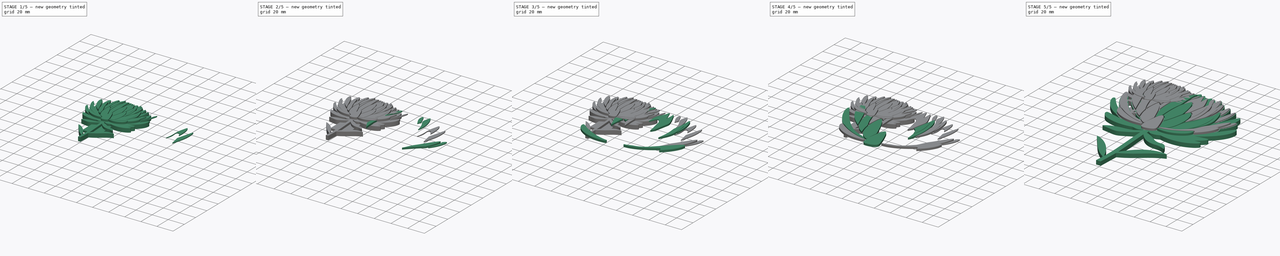
[diagram: build sequence overview — one tinted view per stage of 5, left to right]
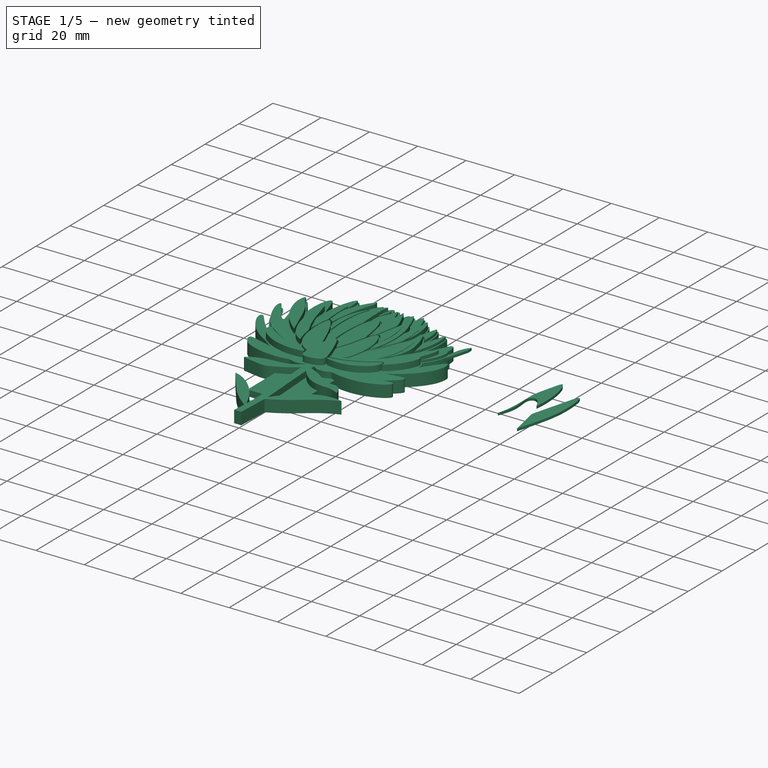
[diagram: stage 1 of 5 — iso view after this stage's code; geometry added in this stage tinted green]
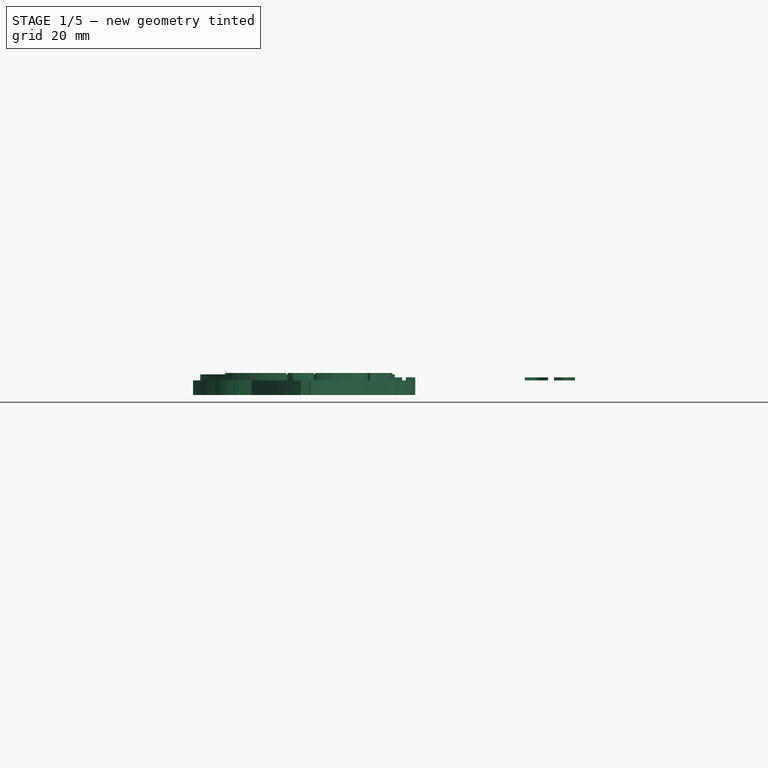
[diagram: stage 1 of 5 — front view after this stage's code; geometry added in this stage tinted green]
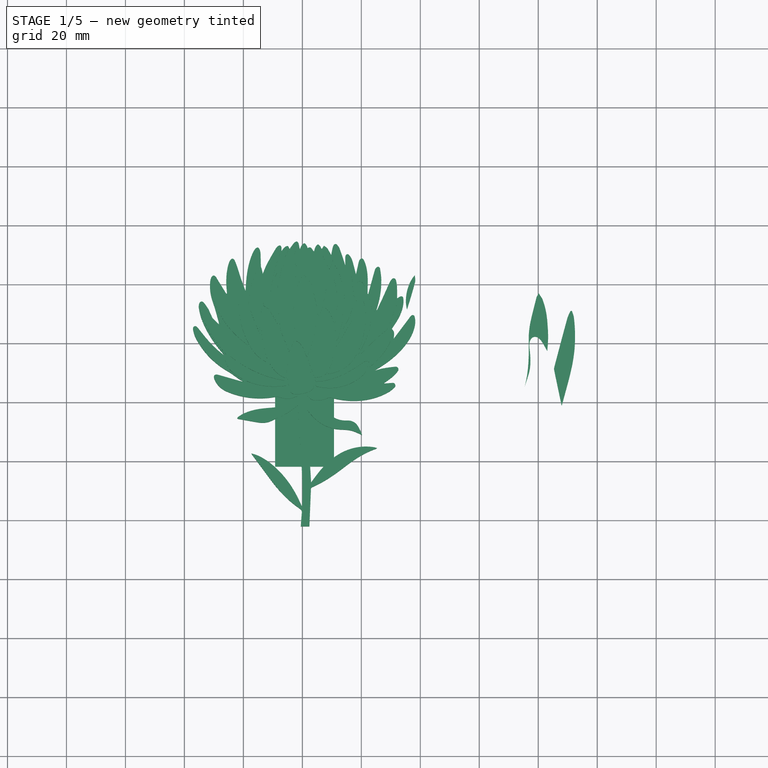
[diagram: stage 1 of 5 — top view after this stage's code; geometry added in this stage tinted green]
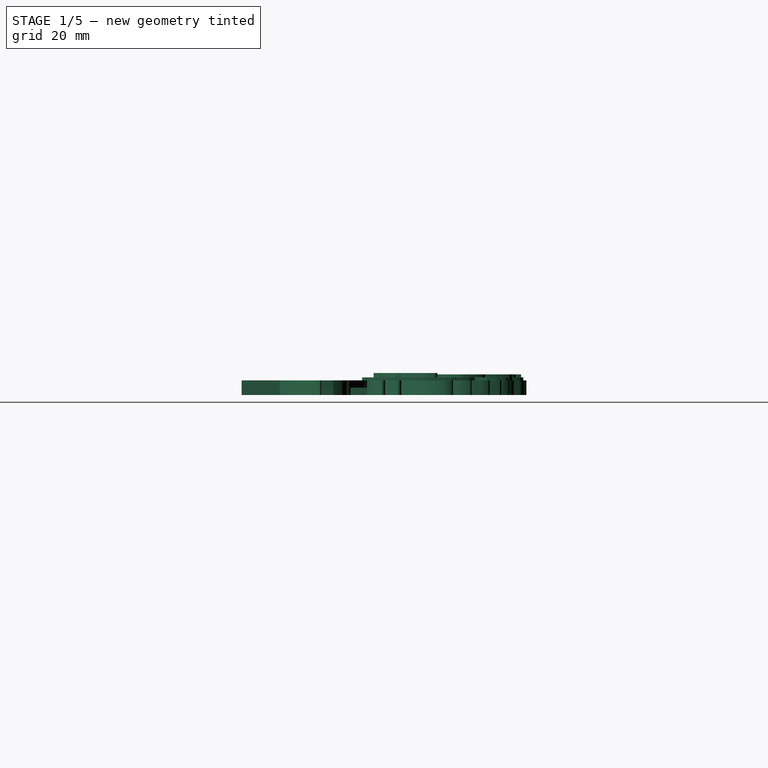
[diagram: stage 1 of 5 — right view after this stage's code; geometry added in this stage tinted green]
FCSTD DOCUMENT  (FreeCAD 1.0R39109 (Git))
Label: hook
License: All rights reserved
LicenseURL: https://en.wikipedia.org/wiki/All_rights_reserved
objects: Part::Extrusion×31, Part::Feature×29, Part::MultiFuse×2, Sketcher::SketchObject×2, Part::Scale×1
note: 67 computed .brp shape members not serialized (recipe doc carries the construction recipe); baked Part::Feature solids carry a one-line shape summary decoded from their .brp

FEATURE [Part::Extrusion] Extrude025
  Base = -> Path026
  Dir = (0,0,1)
  DirMode = 2
  FaceMakerClass = Part::FaceMakerBullseye
  FaceMakerMode = 3
  LengthFwd = 1
  LengthRev = 0
  Solid = true
  Symmetric = false
FEATURE [Part::Extrusion] Extrude026
  Base = -> Path027
  Dir = (0,0,1)
  DirMode = 2
  FaceMakerClass = Part::FaceMakerBullseye
  FaceMakerMode = 3
  LengthFwd = 1
  LengthRev = 0
  Solid = true
  Symmetric = false
FEATURE [Part::Extrusion] Extrude027
  Base = -> Path031
  Dir = (0,0,1)
  DirMode = 2
  FaceMakerClass = Part::FaceMakerBullseye
  FaceMakerMode = 3
  LengthFwd = 1
  LengthRev = 0
  Solid = true
  Symmetric = false
FEATURE [Part::Extrusion] Extrude028
  Base = -> Path037
  Dir = (0,0,1)
  DirMode = 2
  FaceMakerClass = Part::FaceMakerBullseye
  FaceMakerMode = 3
  LengthFwd = 1
  LengthRev = 0
  Solid = true
  Symmetric = false
FEATURE [Part::Scale] Scale
  Base = -> Fusion
  Uniform = false
  UniformScale = 1
  XScale = 0.5
  YScale = 0.5
  ZScale = 1
FEATURE [Sketcher::SketchObject] Sketch
  ArcFitTolerance = 1e-06
  ExternalGeometry = -> [Scale]
  FullyConstrained = false
  MakeInternals = false
  sketch-geometry (6):
    g0: LineSegment StartX=8.103 StartY=-28.2912 StartZ=0 EndX=21.7005 EndY=-47.9796 EndZ=0
    g1: LineSegment StartX=21.7005 StartY=-47.9796 StartZ=0 EndX=30.7156 EndY=-49.77 EndZ=0
    g2: LineSegment StartX=30.7156 StartY=-49.77 StartZ=0 EndX=31.0796 EndY=-47.8936 EndZ=0
    g3: LineSegment StartX=31.0796 StartY=-47.8936 StartZ=0 EndX=10.1473 EndY=-27.3766 EndZ=0
    g4: LineSegment StartX=8.103 StartY=-28.2912 StartZ=0 EndX=11.554 EndY=-32.3919 EndZ=0
    g5: LineSegment StartX=11.554 StartY=-32.3919 StartZ=0 EndX=10.1473 EndY=-27.3766 EndZ=0
  constraints (8):
    c: Coincident(g1,g0)
    c: Coincident(g2,g1)
    c: Coincident(g3,g2)
    c: Coincident(g-4,g0)
    c: Coincident(g-3,g3)
    c: Coincident(g4,g0)
    c: Coincident(g5,g4)
    c: Coincident(g5,g3)
FEATURE [Part::Extrusion] Extrude029
  Base = -> Sketch
  Dir = (0,0,1)
  DirMode = 2
  FaceMakerClass = Part::FaceMakerBullseye
  FaceMakerMode = 3
  LengthFwd = 0
  LengthRev = 5
  Solid = true
  Symmetric = false
FEATURE [Part::MultiFuse] Fusion001
  Shapes = -> [Scale,Extrude029]
FEATURE [Sketcher::SketchObject] Sketch001
  ArcFitTolerance = 1e-06
  FullyConstrained = false
  MakeInternals = false
  sketch-geometry (4):
    g0: LineSegment StartX=30.7548 StartY=-81.7385 StartZ=0 EndX=50.7548 EndY=-81.7385 EndZ=0
    g1: LineSegment StartX=30.7548 StartY=-81.7385 StartZ=0 EndX=30.7548 EndY=-56.7385 EndZ=0
    g2: LineSegment StartX=50.7548 StartY=-81.7385 StartZ=0 EndX=50.7548 EndY=-56.7385 EndZ=0
    g3: LineSegment StartX=30.7548 StartY=-56.7385 StartZ=0 EndX=50.7548 EndY=-56.7385 EndZ=0
  constraints (10):
    c: Distance(g0) = 20
    c: Horizontal(g0)
    c: Distance(g1) = 25
    c: Vertical(g1)
    c: Coincident(g1,g0)
    c: Distance(g2) = 25
    c: Vertical(g2)
    c: Coincident(g2,g0)
    c: Coincident(g3,g1)
    c: Coincident(g3,g2)
FEATURE [Part::Extrusion] Extrude030
  Base = -> Sketch001
  Dir = (0,0,1)
  DirMode = 2
  FaceMakerClass = Part::FaceMakerBullseye
  FaceMakerMode = 3
  LengthFwd = -2.5
  LengthRev = 5
  Solid = true
  Symmetric = false
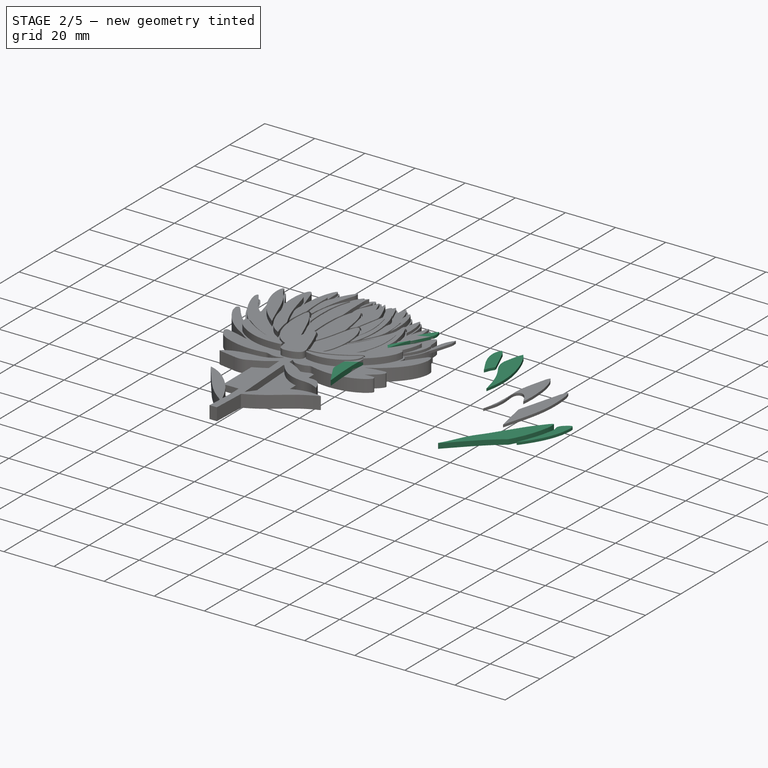
[diagram: stage 2 of 5 — iso view after this stage's code; geometry added in this stage tinted green]
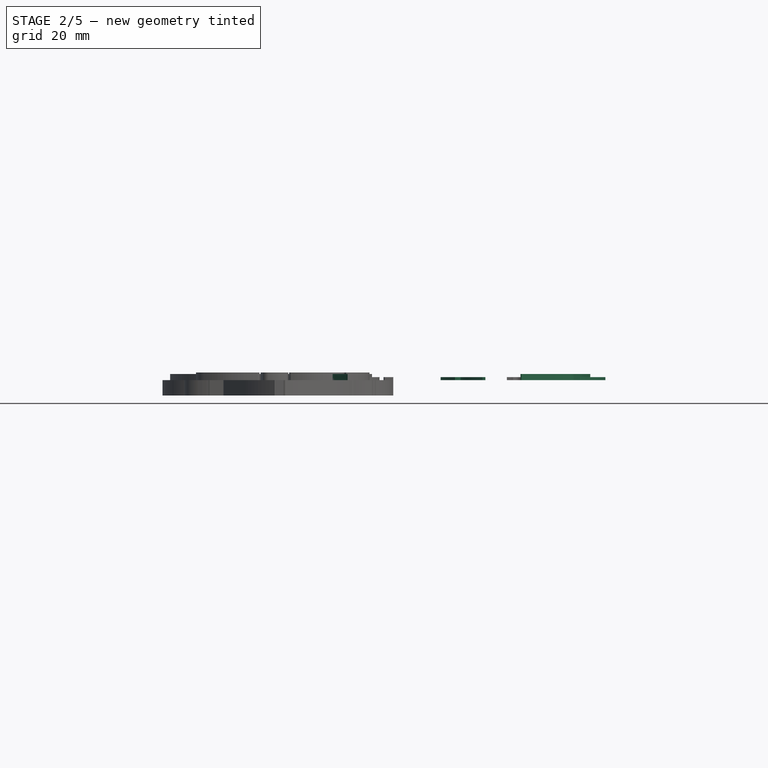
[diagram: stage 2 of 5 — front view after this stage's code; geometry added in this stage tinted green]
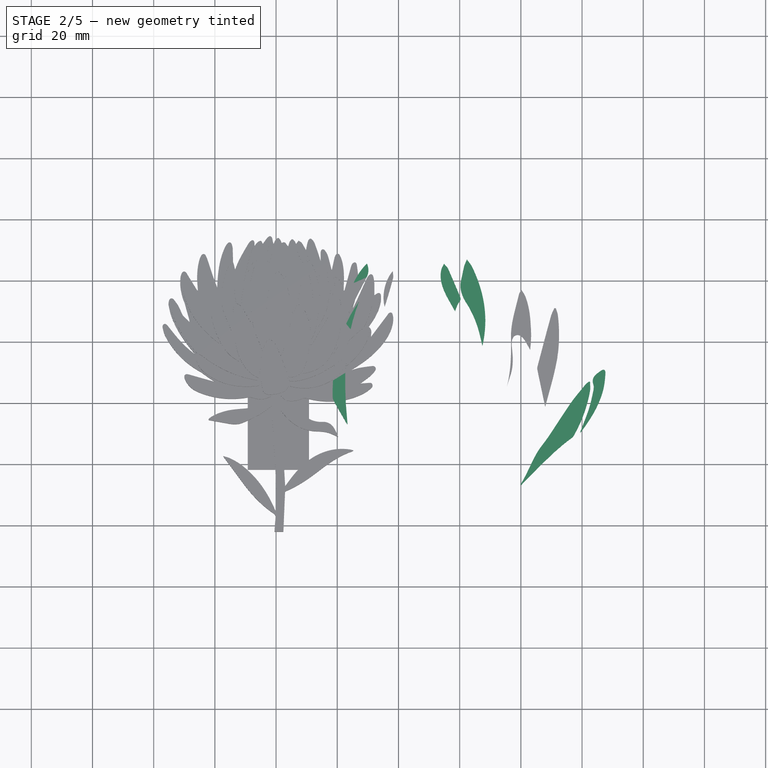
[diagram: stage 2 of 5 — top view after this stage's code; geometry added in this stage tinted green]
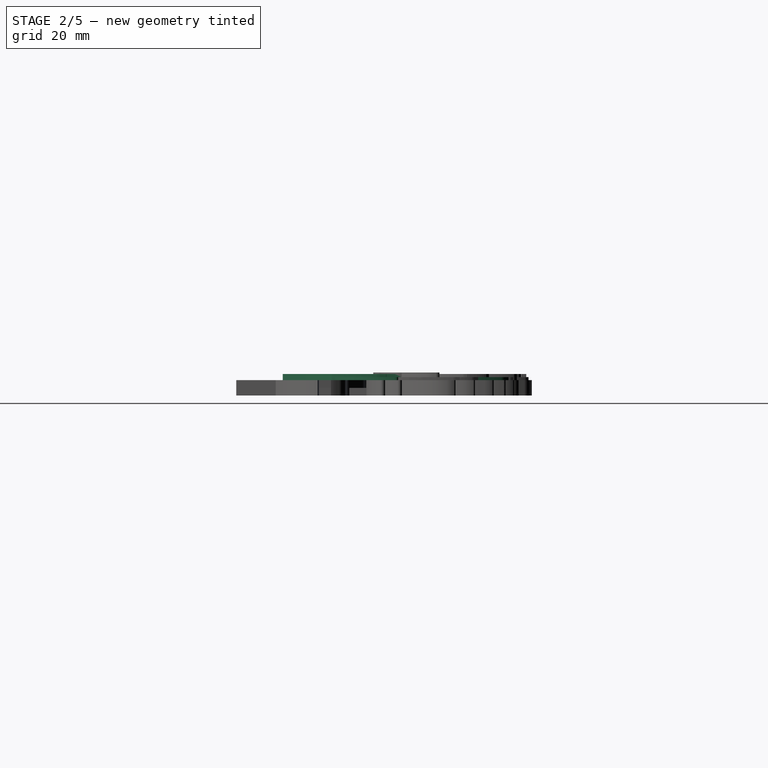
[diagram: stage 2 of 5 — right view after this stage's code; geometry added in this stage tinted green]
FEATURE [Part::Extrusion] Extrude019
  Base = -> Path023
  Dir = (0,0,1)
  DirMode = 2
  FaceMakerClass = Part::FaceMakerBullseye
  FaceMakerMode = 3
  LengthFwd = 2
  LengthRev = 0
  Solid = true
  Symmetric = false
FEATURE [Part::Extrusion] Extrude020
  Base = -> Path029
  Dir = (0,0,1)
  DirMode = 2
  FaceMakerClass = Part::FaceMakerBullseye
  FaceMakerMode = 3
  LengthFwd = 2
  LengthRev = 0
  Solid = true
  Symmetric = false
FEATURE [Part::Extrusion] Extrude021
  Base = -> Path030
  Dir = (0,0,1)
  DirMode = 2
  FaceMakerClass = Part::FaceMakerBullseye
  FaceMakerMode = 3
  LengthFwd = 1
  LengthRev = 0
  Solid = true
  Symmetric = false
FEATURE [Part::Extrusion] Extrude022
  Base = -> Path033
  Dir = (0,0,1)
  DirMode = 2
  FaceMakerClass = Part::FaceMakerBullseye
  FaceMakerMode = 3
  LengthFwd = 1
  LengthRev = 0
  Solid = true
  Symmetric = false
FEATURE [Part::Extrusion] Extrude023
  Base = -> Path034
  Dir = (0,0,1)
  DirMode = 2
  FaceMakerClass = Part::FaceMakerBullseye
  FaceMakerMode = 3
  LengthFwd = 1
  LengthRev = 0
  Solid = true
  Symmetric = false
FEATURE [Part::Extrusion] Extrude024
  Base = -> Path035
  Dir = (0,0,1)
  DirMode = 2
  FaceMakerClass = Part::FaceMakerBullseye
  FaceMakerMode = 3
  LengthFwd = 1
  LengthRev = 0
  Solid = true
  Symmetric = false
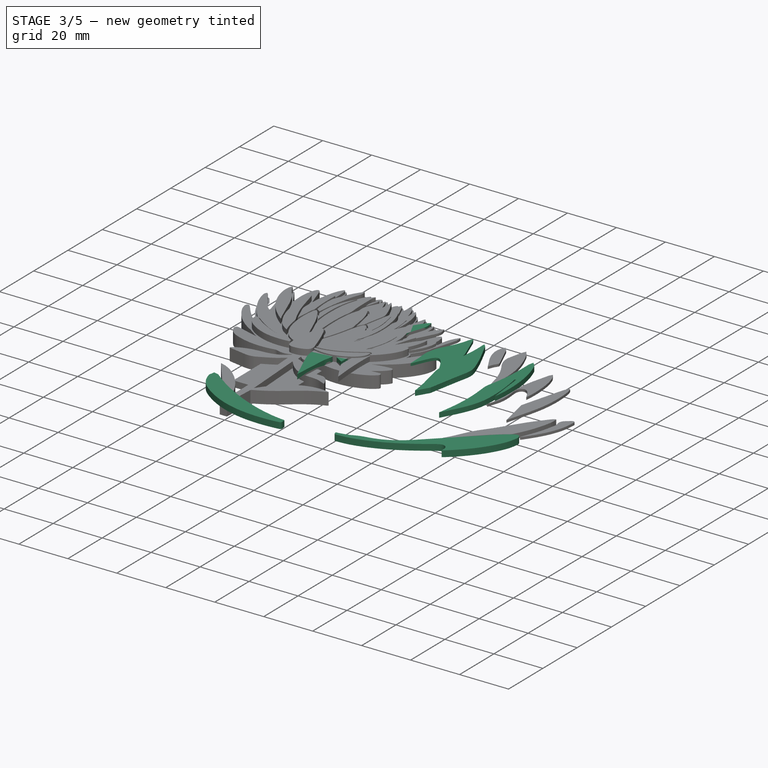
[diagram: stage 3 of 5 — iso view after this stage's code; geometry added in this stage tinted green]
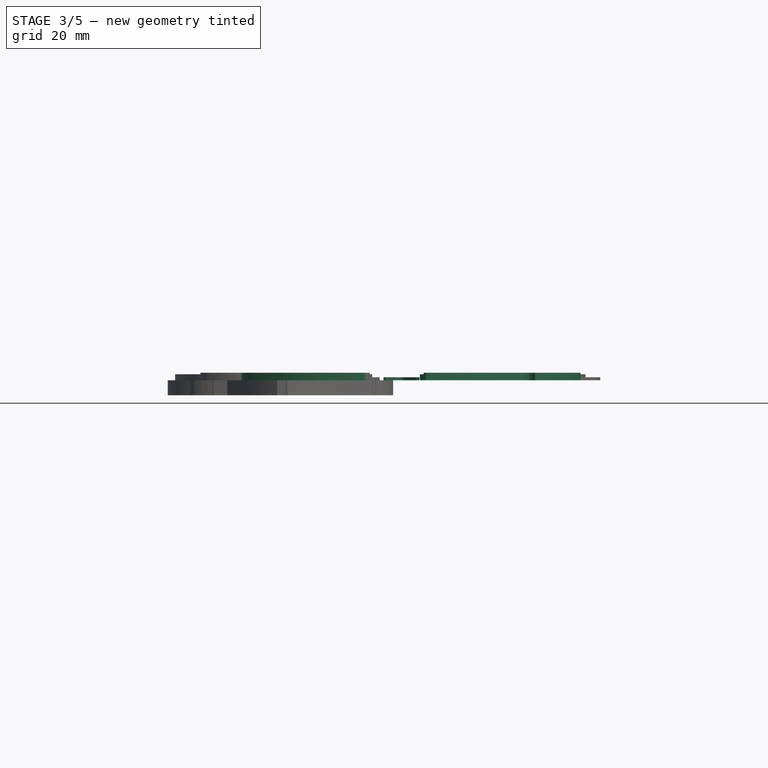
[diagram: stage 3 of 5 — front view after this stage's code; geometry added in this stage tinted green]
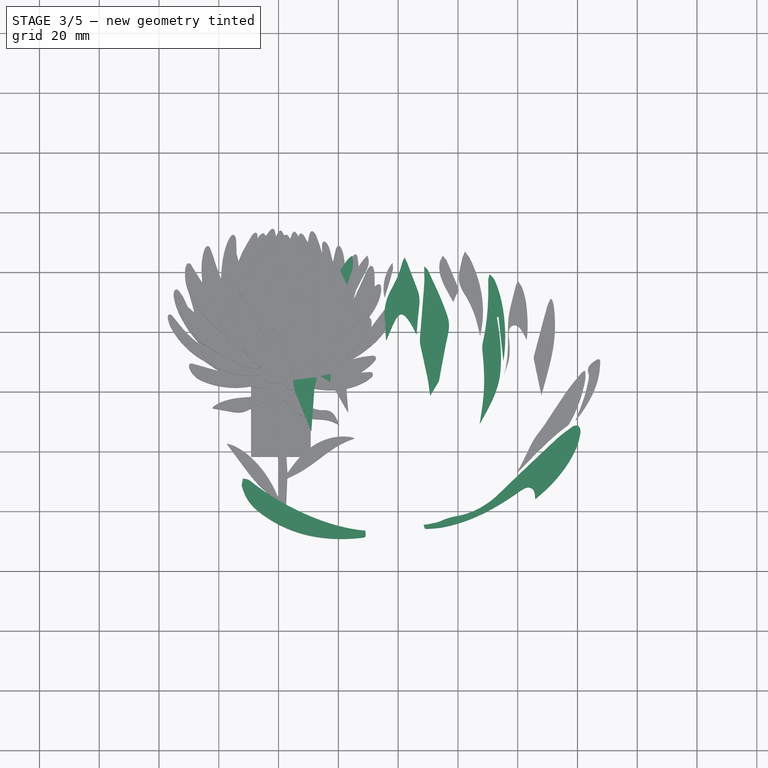
[diagram: stage 3 of 5 — top view after this stage's code; geometry added in this stage tinted green]
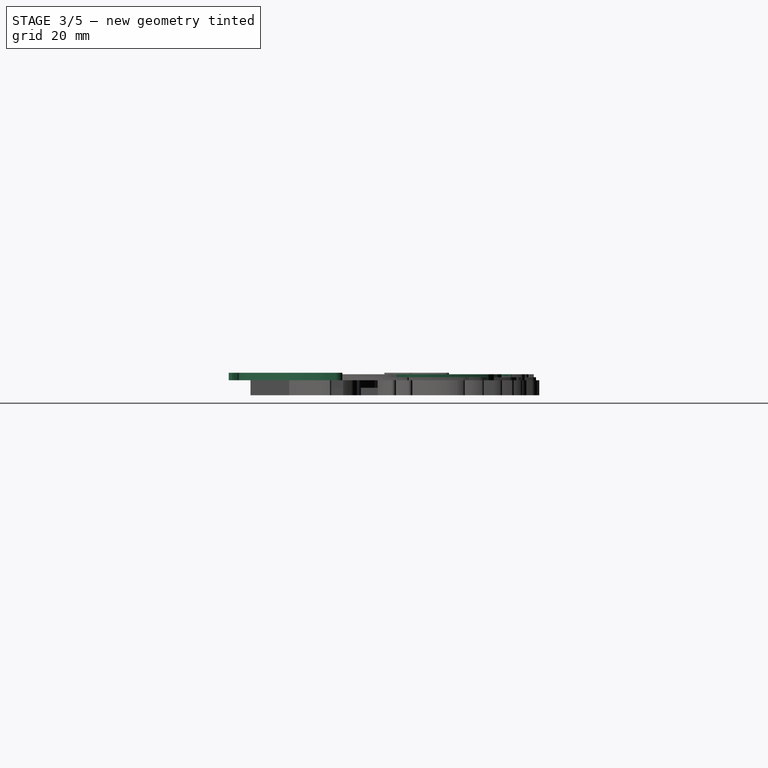
[diagram: stage 3 of 5 — right view after this stage's code; geometry added in this stage tinted green]
FEATURE [Part::Extrusion] Extrude012
  Base = -> Path012
  Dir = (0,0,1)
  DirMode = 2
  FaceMakerClass = Part::FaceMakerBullseye
  FaceMakerMode = 3
  LengthFwd = 2.5
  LengthRev = 0
  Solid = true
  Symmetric = false
FEATURE [Part::Extrusion] Extrude013
  Base = -> Path014
  Dir = (0,0,1)
  DirMode = 2
  FaceMakerClass = Part::FaceMakerBullseye
  FaceMakerMode = 3
  LengthFwd = 2
  LengthRev = 0
  Solid = true
  Symmetric = false
FEATURE [Part::Extrusion] Extrude014
  Base = -> Path015
  Dir = (0,0,1)
  DirMode = 2
  FaceMakerClass = Part::FaceMakerBullseye
  FaceMakerMode = 3
  LengthFwd = 2.5
  LengthRev = 0
  Solid = true
  Symmetric = false
FEATURE [Part::Extrusion] Extrude015
  Base = -> Path016
  Dir = (0,0,1)
  DirMode = 2
  FaceMakerClass = Part::FaceMakerBullseye
  FaceMakerMode = 3
  LengthFwd = 2
  LengthRev = 0
  Solid = true
  Symmetric = false
FEATURE [Part::Extrusion] Extrude016
  Base = -> Path017
  Dir = (0,0,1)
  DirMode = 2
  FaceMakerClass = Part::FaceMakerBullseye
  FaceMakerMode = 3
  LengthFwd = 2
  LengthRev = 0
  Solid = true
  Symmetric = false
FEATURE [Part::Extrusion] Extrude017
  Base = -> Path018
  Dir = (0,0,1)
  DirMode = 2
  FaceMakerClass = Part::FaceMakerBullseye
  FaceMakerMode = 3
  LengthFwd = 2
  LengthRev = 0
  Solid = true
  Symmetric = false
FEATURE [Part::Extrusion] Extrude018
  Base = -> Path021
  Dir = (0,0,1)
  DirMode = 2
  FaceMakerClass = Part::FaceMakerBullseye
  FaceMakerMode = 3
  LengthFwd = 1
  LengthRev = 0
  Solid = true
  Symmetric = false
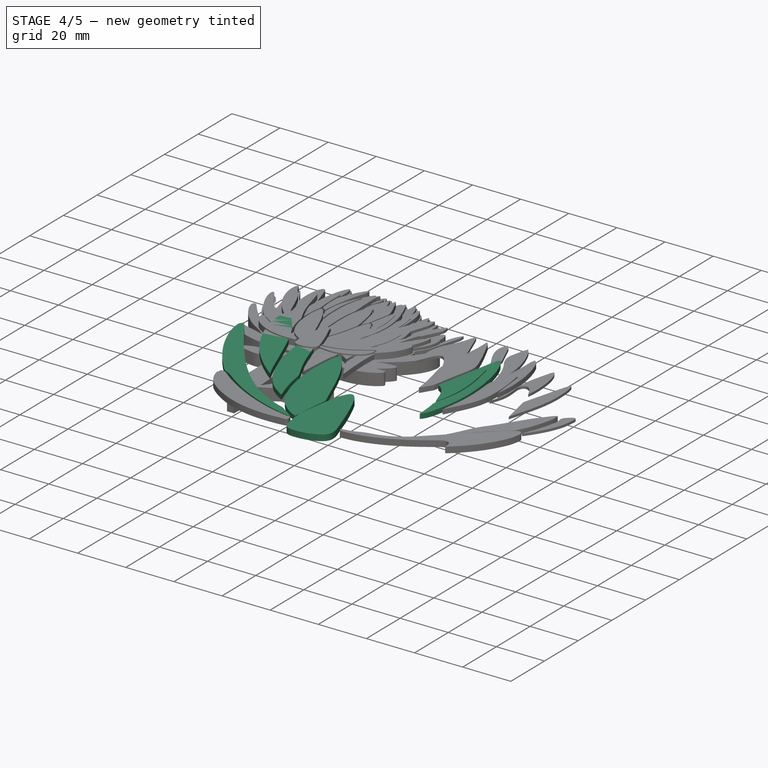
[diagram: stage 4 of 5 — iso view after this stage's code; geometry added in this stage tinted green]
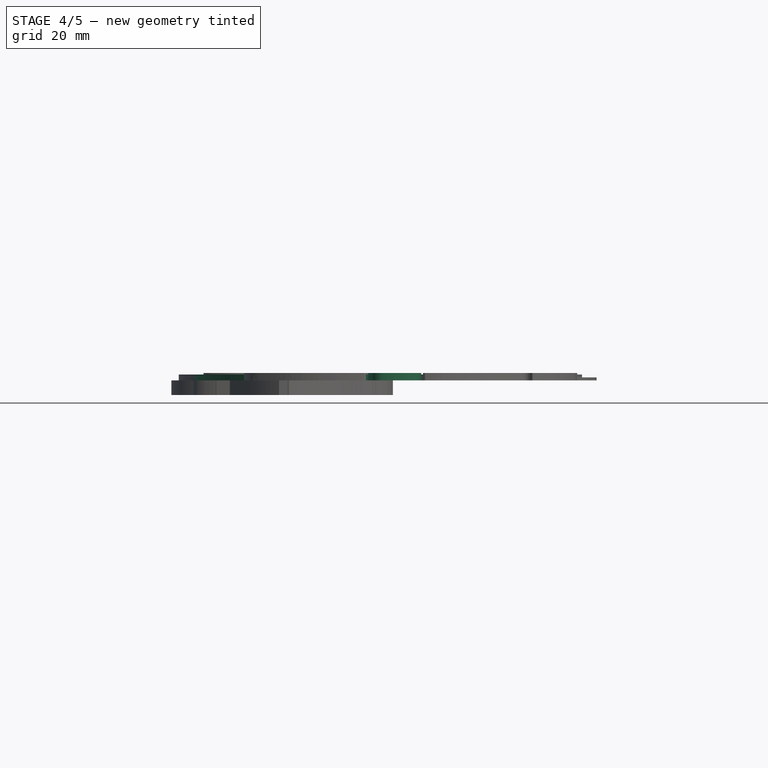
[diagram: stage 4 of 5 — front view after this stage's code; geometry added in this stage tinted green]
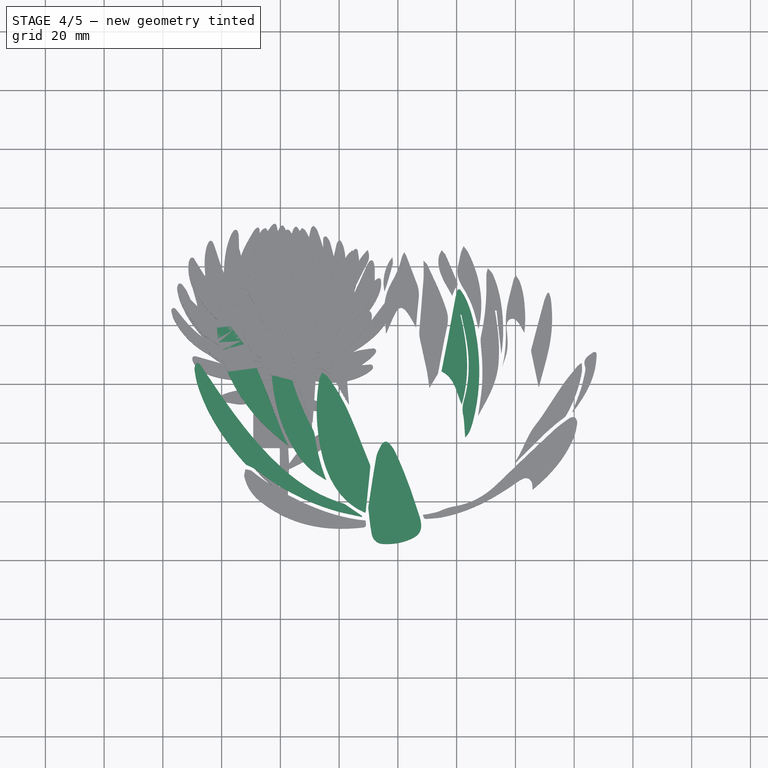
[diagram: stage 4 of 5 — top view after this stage's code; geometry added in this stage tinted green]
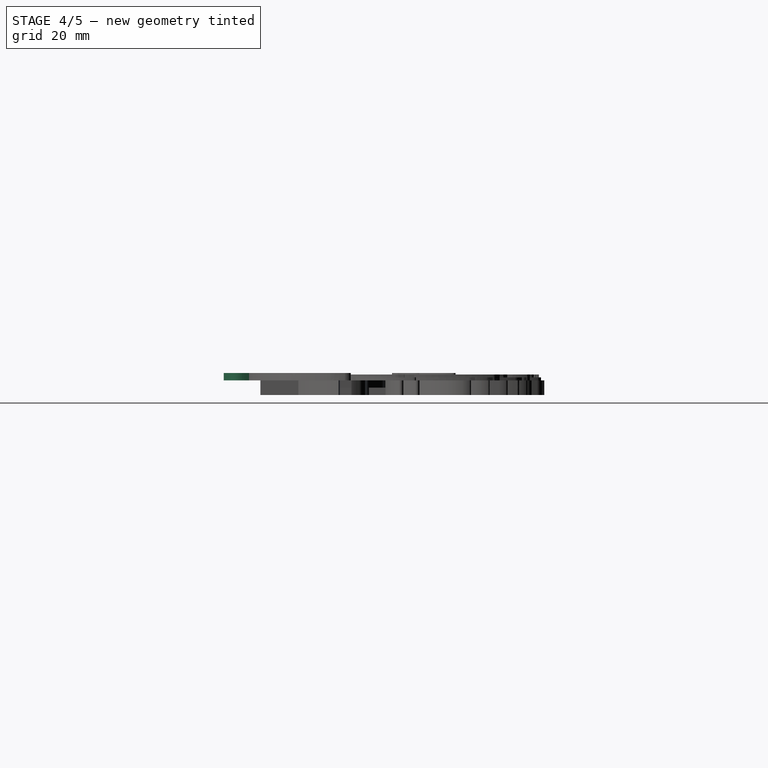
[diagram: stage 4 of 5 — right view after this stage's code; geometry added in this stage tinted green]
FEATURE [Part::Extrusion] Extrude006
  Base = -> Path006
  Dir = (0,0,1)
  DirMode = 2
  FaceMakerClass = Part::FaceMakerBullseye
  FaceMakerMode = 3
  LengthFwd = 2
  LengthRev = 0
  Solid = true
  Symmetric = false
FEATURE [Part::Extrusion] Extrude007
  Base = -> Path007
  Dir = (0,0,1)
  DirMode = 2
  FaceMakerClass = Part::FaceMakerBullseye
  FaceMakerMode = 3
  LengthFwd = 2.5
  LengthRev = 0
  Solid = true
  Symmetric = false
FEATURE [Part::Extrusion] Extrude008
  Base = -> Path008
  Dir = (0,0,1)
  DirMode = 2
  FaceMakerClass = Part::FaceMakerBullseye
  FaceMakerMode = 3
  LengthFwd = 2
  LengthRev = 0
  Solid = true
  Symmetric = false
FEATURE [Part::Extrusion] Extrude009
  Base = -> Path009
  Dir = (0,0,1)
  DirMode = 2
  FaceMakerClass = Part::FaceMakerBullseye
  FaceMakerMode = 3
  LengthFwd = 2
  LengthRev = 0
  Solid = true
  Symmetric = false
FEATURE [Part::Extrusion] Extrude010
  Base = -> Path010
  Dir = (0,0,1)
  DirMode = 2
  FaceMakerClass = Part::FaceMakerBullseye
  FaceMakerMode = 3
  LengthFwd = 2
  LengthRev = 0
  Solid = true
  Symmetric = false
FEATURE [Part::Extrusion] Extrude011
  Base = -> Path011
  Dir = (0,0,1)
  DirMode = 2
  FaceMakerClass = Part::FaceMakerBullseye
  FaceMakerMode = 3
  LengthFwd = 2
  LengthRev = 0
  Solid = true
  Symmetric = false
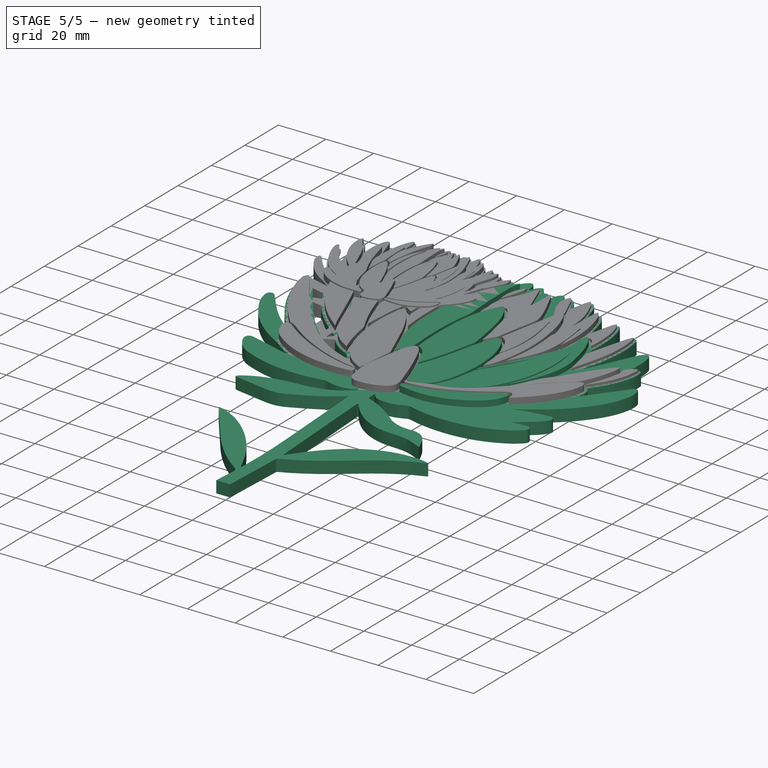
[diagram: stage 5 of 5 — iso view after this stage's code; geometry added in this stage tinted green]
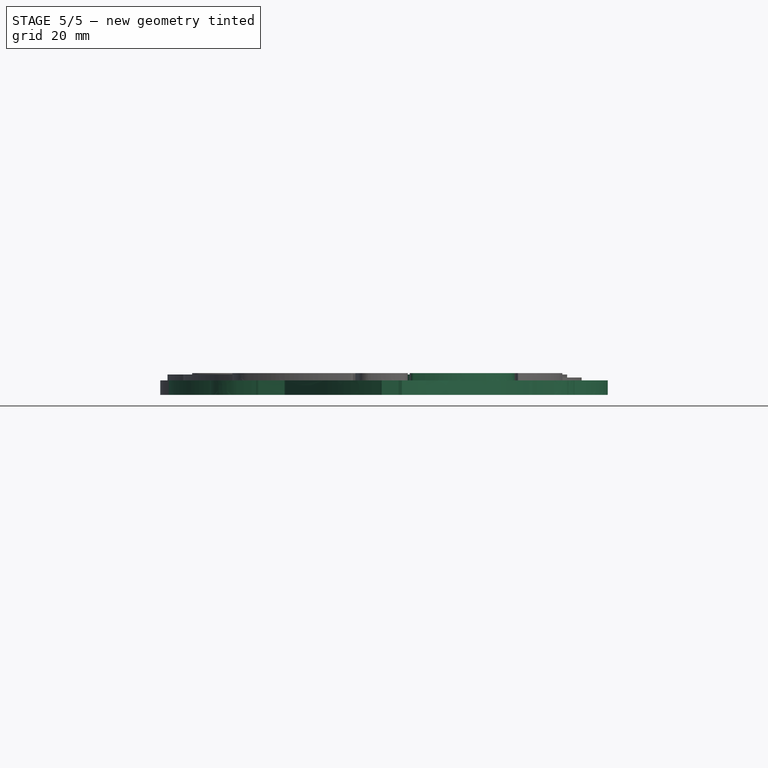
[diagram: stage 5 of 5 — front view after this stage's code; geometry added in this stage tinted green]
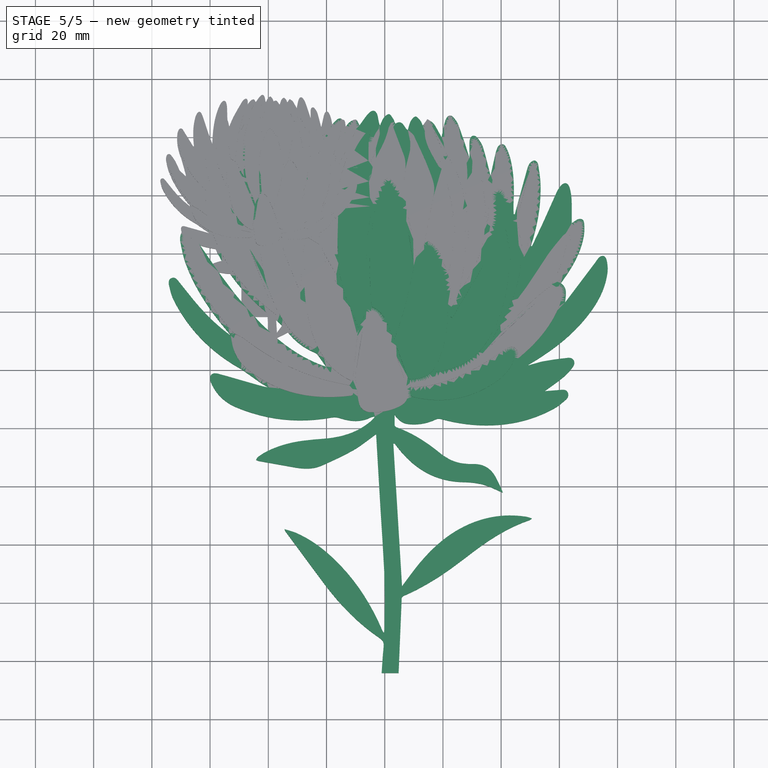
[diagram: stage 5 of 5 — top view after this stage's code; geometry added in this stage tinted green]
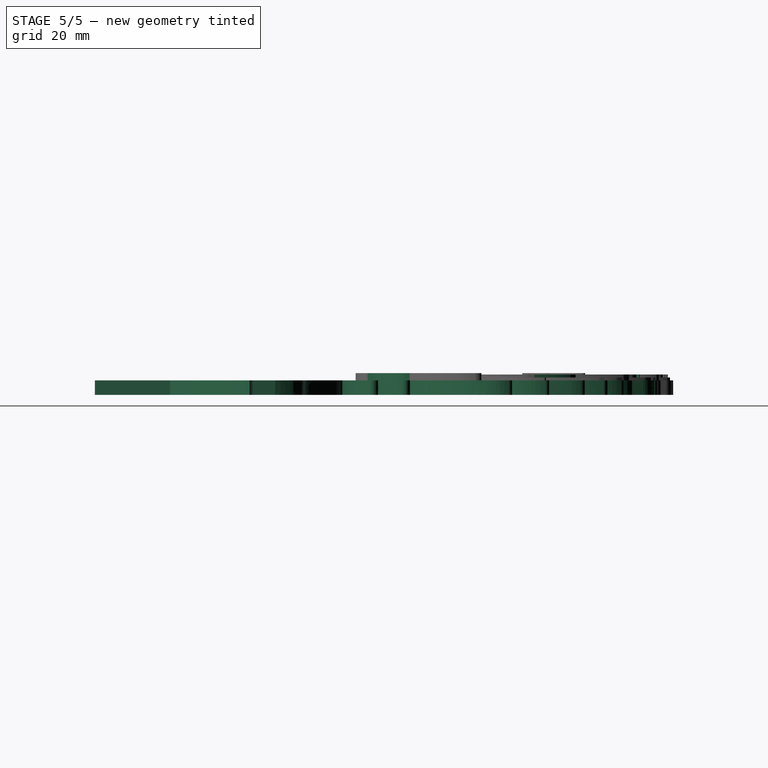
[diagram: stage 5 of 5 — right view after this stage's code; geometry added in this stage tinted green]
FEATURE [Part::Feature] Path003
  shape: bbox 15.25 x 54.21 x 2e-07 mm, 0 faces, 0 solids (baked)
FEATURE [Part::Feature] Path004
  shape: bbox 12.02 x 69.08 x 2e-07 mm, 0 faces, 0 solids (baked)
FEATURE [Part::Feature] Path005
  shape: bbox 17.86 x 46.18 x 2e-07 mm, 0 faces, 0 solids (baked)
FEATURE [Part::Feature] Path006
  shape: bbox 18.44 x 47.75 x 2e-07 mm, 0 faces, 0 solids (baked)
FEATURE [Part::Feature] Path008
  shape: bbox 57.09 x 52.57 x 2e-07 mm, 0 faces, 0 solids (baked)
FEATURE [Part::Feature] Path010
  shape: bbox 18.81 x 54.02 x 2e-07 mm, 0 faces, 0 solids (baked)
FEATURE [Part::Feature] Path011
  shape: bbox 24.33 x 46.03 x 2e-07 mm, 0 faces, 0 solids (baked)
FEATURE [Part::Feature] Path014
  shape: bbox 10.35 x 43.33 x 2e-07 mm, 0 faces, 0 solids (baked)
FEATURE [Part::Feature] Path015
  shape: bbox 41.67 x 20.98 x 2e-07 mm, 0 faces, 0 solids (baked)
FEATURE [Part::Feature] Path017
  shape: bbox 12.3 x 42.22 x 2e-07 mm, 0 faces, 0 solids (baked)
FEATURE [Part::Feature] Path018
  shape: bbox 8.11 x 43.14 x 2e-07 mm, 0 faces, 0 solids (baked)
FEATURE [Part::Feature] Path021
  shape: bbox 11.97 x 27.75 x 2e-07 mm, 0 faces, 0 solids (baked)
FEATURE [Part::Feature] Path026
  shape: bbox 8.764 x 37.3 x 2e-07 mm, 0 faces, 0 solids (baked)
FEATURE [Part::Feature] Path029
  shape: bbox 8.697 x 40.08 x 2e-07 mm, 0 faces, 0 solids (baked)
FEATURE [Part::Feature] Path030
  shape: bbox 8.727 x 28.27 x 2e-07 mm, 0 faces, 0 solids (baked)
FEATURE [Part::Feature] Path027
  shape: bbox 7.258 x 32.17 x 2e-07 mm, 0 faces, 0 solids (baked)
FEATURE [Part::Feature] Path034
  shape: bbox 8.375 x 20.67 x 2e-07 mm, 0 faces, 0 solids (baked)
FEATURE [Part::Feature] Path023
  shape: bbox 22.84 x 33.83 x 2e-07 mm, 0 faces, 0 solids (baked)
FEATURE [Part::Feature] Path012
  shape: bbox 52.55 x 34.76 x 2e-07 mm, 0 faces, 0 solids (baked)
FEATURE [Part::Feature] Path019
  shape: bbox 35.92 x 17.67 x 2e-07 mm, 0 faces, 0 solids (baked)
FEATURE [Part::Feature] Path007
  shape: bbox 18.19 x 35.14 x 2e-07 mm, 0 faces, 0 solids (baked)
FEATURE [Part::Feature] Path
  shape: bbox 151 x 193.3 x 2e-07 mm, 0 faces, 0 solids (baked)
FEATURE [Part::Feature] Path031
  shape: bbox 7.945 x 31.58 x 2e-07 mm, 0 faces, 0 solids (baked)
FEATURE [Part::Feature] Path002
  shape: bbox 29.27 x 61.79 x 2e-07 mm, 0 faces, 0 solids (baked)
FEATURE [Part::Feature] Path016
  shape: bbox 8.658 x 50.28 x 2e-07 mm, 0 faces, 0 solids (baked)
FEATURE [Part::Feature] Path035
  shape: bbox 8.954 x 20.08 x 2e-07 mm, 0 faces, 0 solids (baked)
FEATURE [Part::Feature] Path037
  shape: bbox 3.475 x 11.64 x 2e-07 mm, 0 faces, 0 solids (baked)
FEATURE [Part::Feature] Path033
  shape: bbox 6.727 x 15.52 x 2e-07 mm, 0 faces, 0 solids (baked)
FEATURE [Part::Feature] Path009
  shape: bbox 13.11 x 50.54 x 2e-07 mm, 0 faces, 0 solids (baked)
FEATURE [Part::Extrusion] Extrude
  Base = -> Path
  Dir = (0,0,-1)
  DirMode = 2
  FaceMakerClass = Part::FaceMakerBullseye
  FaceMakerMode = 3
  LengthFwd = 5
  LengthRev = 0
  Solid = true
  Symmetric = false
FEATURE [Part::Extrusion] Extrude001
  Base = -> Path002
  Dir = (0,0,1)
  DirMode = 2
  FaceMakerClass = Part::FaceMakerBullseye
  FaceMakerMode = 3
  LengthFwd = 2
  LengthRev = 0
  Solid = true
  Symmetric = false
FEATURE [Part::Extrusion] Extrude002
  Base = -> Path019
  Dir = (0,0,1)
  DirMode = 2
  FaceMakerClass = Part::FaceMakerBullseye
  FaceMakerMode = 3
  LengthFwd = 2.5
  LengthRev = 0
  Solid = true
  Symmetric = false
FEATURE [Part::Extrusion] Extrude003
  Base = -> Path003
  Dir = (0,0,1)
  DirMode = 2
  FaceMakerClass = Part::FaceMakerBullseye
  FaceMakerMode = 3
  LengthFwd = 2
  LengthRev = 0
  Solid = true
  Symmetric = false
FEATURE [Part::Extrusion] Extrude004
  Base = -> Path004
  Dir = (0,0,1)
  DirMode = 2
  FaceMakerClass = Part::FaceMakerBullseye
  FaceMakerMode = 3
  LengthFwd = 2
  LengthRev = 0
  Solid = true
  Symmetric = false
FEATURE [Part::Extrusion] Extrude005
  Base = -> Path005
  Dir = (0,0,1)
  DirMode = 2
  FaceMakerClass = Part::FaceMakerBullseye
  FaceMakerMode = 3
  LengthFwd = 2
  LengthRev = 0
  Solid = true
  Symmetric = false
FEATURE [Part::MultiFuse] Fusion
  Shapes = -> [Extrude,Extrude001,Extrude002,Extrude003,Extrude004,Extrude005,Extrude006,Extrude007,Extrude008,Extrude009,Extrude010,Extrude011,Extrude012,Extrude013,Extrude014,Extrude015,Extrude016,Extrude017,Extrude018,Extrude019,Extrude020,Extrude021,Extrude022,Extrude023,Extrude024,Extrude025,Extrude026,Extrude027,Extrude028]
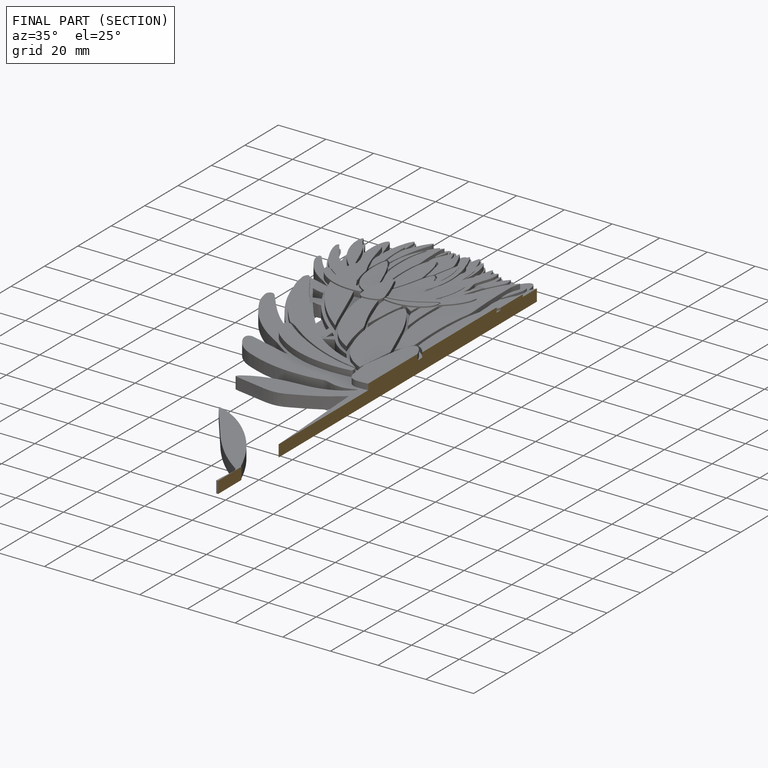
[diagram: finished part — half-section view (interior)]
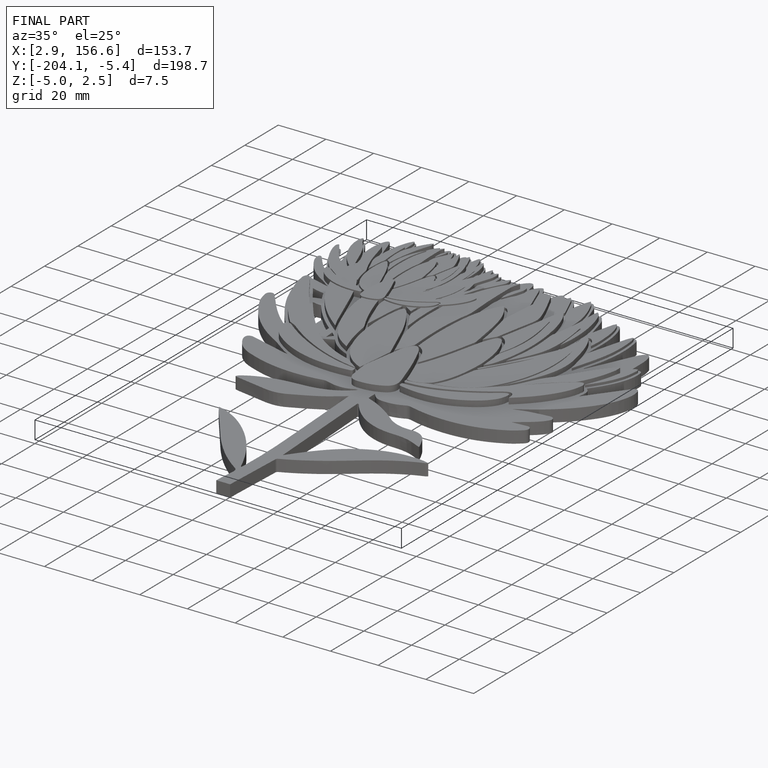
[diagram: finished part — iso view with bounding-box wireframe]
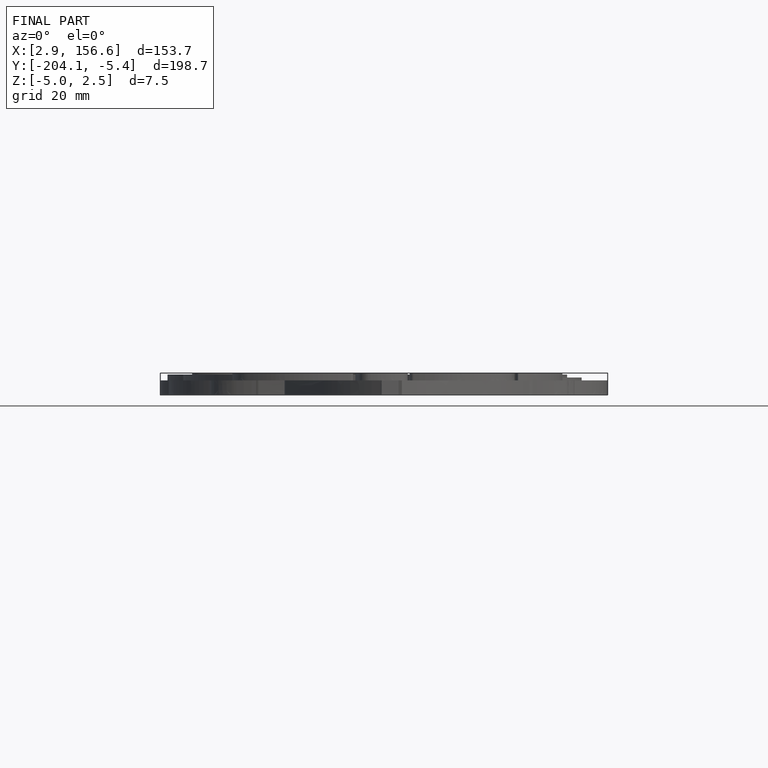
[diagram: finished part — front view with bounding-box wireframe]
